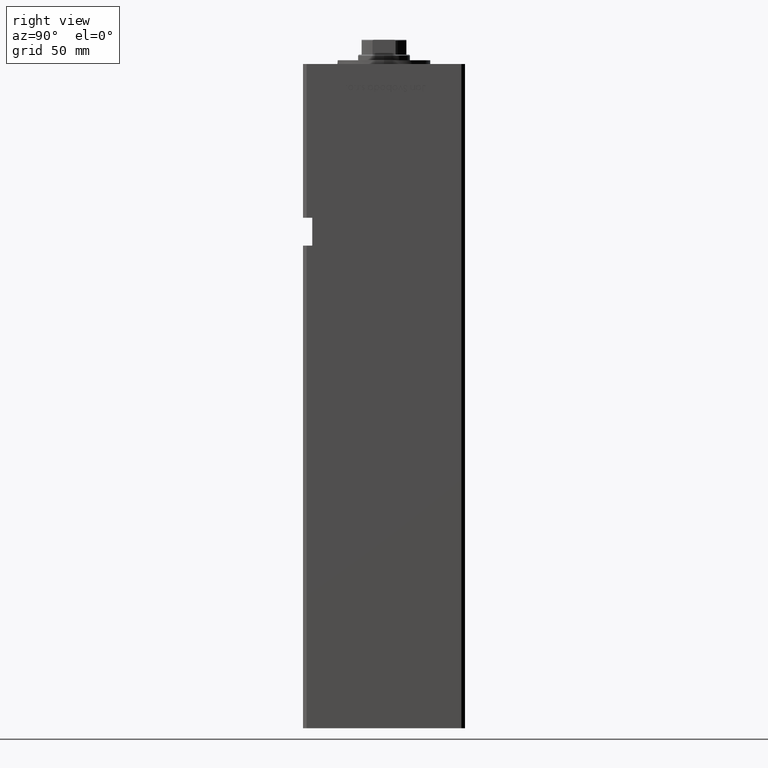
[diagram: clean part render]
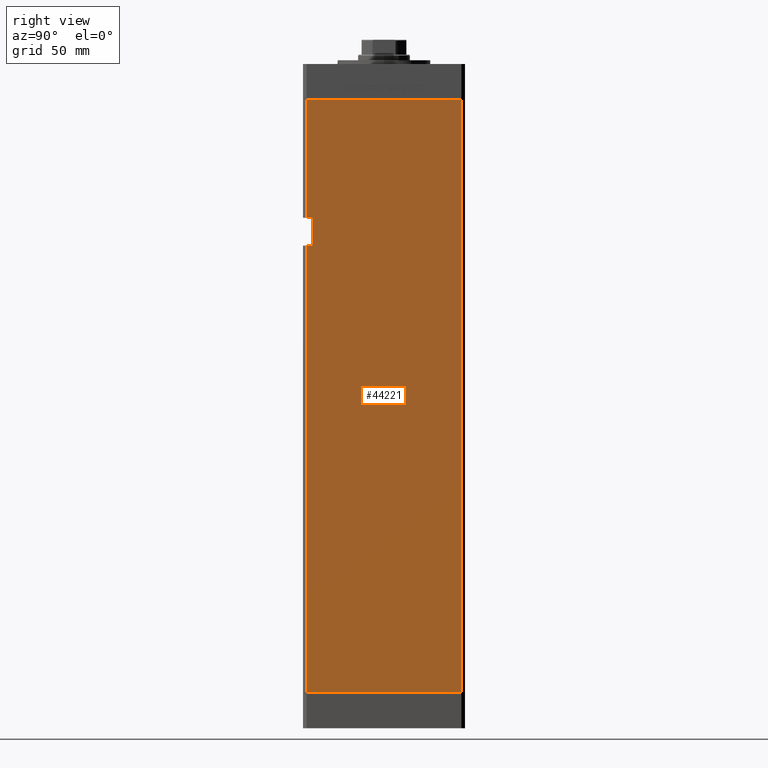
[diagram: same view with one face highlighted and labeled with its STEP entity id]
A machine part, right view. The second image highlights one B-rep face of the part: STEP entity #44221.
In plain terms, the highlighted planar face has unit normal (1, -0, 0).
Its self-contained STEP definition (entity closure, byte-faithful):
#418 = DIRECTION ( 'NONE',  ( -3.344045254895050973E-16, -1.000000000000000000, 0.000000000000000000 ) ) ;
#3753 = ORIENTED_EDGE ( 'NONE', *, *, #17251, .F. ) ;
#4665 = CARTESIAN_POINT ( 'NONE',  ( 49.99999999999998579, -41.49999999999999289, 255.0000000000000000 ) ) ;
#4957 = CARTESIAN_POINT ( 'NONE',  ( 49.99999999999998579, -38.49999999999999289, 240.0000000000000000 ) ) ;
#5417 = ORIENTED_EDGE ( 'NONE', *, *, #35404, .T. ) ;
#7174 = CARTESIAN_POINT ( 'NONE',  ( 49.99999999999998579, -41.49999999999999289, 318.5000000000000000 ) ) ;
#7244 = VECTOR ( 'NONE', #25719, 1000.000000000000000 ) ;
#7304 = DIRECTION ( 'NONE',  ( -0.000000000000000000, -0.000000000000000000, -1.000000000000000000 ) ) ;
#7903 = DIRECTION ( 'NONE',  ( -0.000000000000000000, -0.000000000000000000, -1.000000000000000000 ) ) ;
#8935 = VECTOR ( 'NONE', #418, 1000.000000000000000 ) ;
#9374 = ORIENTED_EDGE ( 'NONE', *, *, #11329, .T. ) ;
#9935 = VERTEX_POINT ( 'NONE', #10259 ) ;
#10259 = CARTESIAN_POINT ( 'NONE',  ( 49.99999999999998579, -41.49999999999999289, 240.0000000000000000 ) ) ;
#10428 = VERTEX_POINT ( 'NONE', #14360 ) ;
#10524 = VECTOR ( 'NONE', #51122, 1000.000000000000000 ) ;
#10546 = LINE ( 'NONE', #13515, #10524 ) ;
#11329 = EDGE_CURVE ( 'NONE', #9935, #17495, #44242, .T. ) ;
#11473 = DIRECTION ( 'NONE',  ( 1.000000000000000000, -3.344045254895050480E-16, 0.000000000000000000 ) ) ;
#11699 = VERTEX_POINT ( 'NONE', #4665 ) ;
#13515 = CARTESIAN_POINT ( 'NONE',  ( 49.99999999999998579, -38.50000000000000000, 255.0000000000000000 ) ) ;
#13872 = VERTEX_POINT ( 'NONE', #35710 ) ;
#14360 = CARTESIAN_POINT ( 'NONE',  ( 49.99999999999998579, -38.50000000000000000, 255.0000000000000000 ) ) ;
#15358 = LINE ( 'NONE', #43585, #50975 ) ;
#17251 = EDGE_CURVE ( 'NONE', #10428, #11699, #10546, .T. ) ;
#17495 = VERTEX_POINT ( 'NONE', #41139 ) ;
#17515 = VECTOR ( 'NONE', #7903, 1000.000000000000000 ) ;
#19515 = DIRECTION ( 'NONE',  ( 3.344045254895050480E-16, 1.000000000000000000, 0.000000000000000000 ) ) ;
#20538 = EDGE_CURVE ( 'NONE', #13872, #34175, #27709, .T. ) ;
#20823 = CARTESIAN_POINT ( 'NONE',  ( 49.99999999999998579, -41.49999999999999289, 318.5000000000000000 ) ) ;
#22927 = ORIENTED_EDGE ( 'NONE', *, *, #34321, .T. ) ;
#23491 = VECTOR ( 'NONE', #47278, 1000.000000000000000 ) ;
#23796 = DIRECTION ( 'NONE',  ( -0.000000000000000000, -0.000000000000000000, -1.000000000000000000 ) ) ;
#25550 = EDGE_LOOP ( 'NONE', ( #5417, #9374, #28723, #40285, #52914, #22927, #3753, #47292 ) ) ;
#25699 = EDGE_CURVE ( 'NONE', #34175, #17495, #15358, .T. ) ;
#25719 = DIRECTION ( 'NONE',  ( -0.000000000000000000, -1.000000000000000000, -0.000000000000000000 ) ) ;
#26052 = EDGE_CURVE ( 'NONE', #31769, #10428, #44301, .T. ) ;
#26521 = VERTEX_POINT ( 'NONE', #20823 ) ;
#27709 = LINE ( 'NONE', #40331, #49182 ) ;
#28040 = CARTESIAN_POINT ( 'NONE',  ( 49.99999999999998579, -41.49999999999999289, 318.5000000000000000 ) ) ;
#28650 = LINE ( 'NONE', #40741, #8935 ) ;
#28723 = ORIENTED_EDGE ( 'NONE', *, *, #25699, .F. ) ;
#31769 = VERTEX_POINT ( 'NONE', #4957 ) ;
#34055 = LINE ( 'NONE', #50449, #7244 ) ;
#34175 = VERTEX_POINT ( 'NONE', #34790 ) ;
#34321 = EDGE_CURVE ( 'NONE', #26521, #11699, #44702, .T. ) ;
#34790 = CARTESIAN_POINT ( 'NONE',  ( 50.00000000000001421, 41.49999999999999289, 0.000000000000000000 ) ) ;
#35404 = EDGE_CURVE ( 'NONE', #31769, #9935, #34055, .T. ) ;
#35710 = CARTESIAN_POINT ( 'NONE',  ( 50.00000000000001421, 41.49999999999999289, 318.5000000000000000 ) ) ;
#36447 = PLANE ( 'NONE',  #44290 ) ;
#36702 = FACE_OUTER_BOUND ( 'NONE', #25550, .T. ) ;
#37524 = EDGE_CURVE ( 'NONE', #13872, #26521, #28650, .T. ) ;
#40285 = ORIENTED_EDGE ( 'NONE', *, *, #20538, .F. ) ;
#40331 = CARTESIAN_POINT ( 'NONE',  ( 50.00000000000001421, 41.49999999999999289, 318.5000000000000000 ) ) ;
#40741 = CARTESIAN_POINT ( 'NONE',  ( 50.00000000000001421, 41.49999999999999289, 318.5000000000000000 ) ) ;
#41139 = CARTESIAN_POINT ( 'NONE',  ( 49.99999999999998579, -41.49999999999999289, 0.000000000000000000 ) ) ;
#42981 = VECTOR ( 'NONE', #23796, 1000.000000000000000 ) ;
#43326 = DIRECTION ( 'NONE',  ( -3.344045254895050973E-16, -1.000000000000000000, 0.000000000000000000 ) ) ;
#43585 = CARTESIAN_POINT ( 'NONE',  ( 50.00000000000001421, 41.49999999999999289, 0.000000000000000000 ) ) ;
#44221 = ADVANCED_FACE ( 'NONE', ( #36702 ), #36447, .T. ) ;
#44242 = LINE ( 'NONE', #7174, #42981 ) ;
#44290 = AXIS2_PLACEMENT_3D ( 'NONE', #44775, #11473, #19515 ) ;
#44301 = LINE ( 'NONE', #47803, #23491 ) ;
#44702 = LINE ( 'NONE', #28040, #17515 ) ;
#44775 = CARTESIAN_POINT ( 'NONE',  ( 50.00000000000001421, 41.49999999999999289, 318.5000000000000000 ) ) ;
#47278 = DIRECTION ( 'NONE',  ( -0.000000000000000000, -0.000000000000000000, 1.000000000000000000 ) ) ;
#47292 = ORIENTED_EDGE ( 'NONE', *, *, #26052, .F. ) ;
#47803 = CARTESIAN_POINT ( 'NONE',  ( 49.99999999999998579, -38.50000000000000000, 255.0000000000000000 ) ) ;
#49182 = VECTOR ( 'NONE', #7304, 1000.000000000000000 ) ;
#50449 = CARTESIAN_POINT ( 'NONE',  ( 49.99999999999998579, -38.50000000000000000, 240.0000000000000000 ) ) ;
#50975 = VECTOR ( 'NONE', #43326, 1000.000000000000000 ) ;
#51122 = DIRECTION ( 'NONE',  ( -0.000000000000000000, -1.000000000000000000, -0.000000000000000000 ) ) ;
#52914 = ORIENTED_EDGE ( 'NONE', *, *, #37524, .T. ) ;